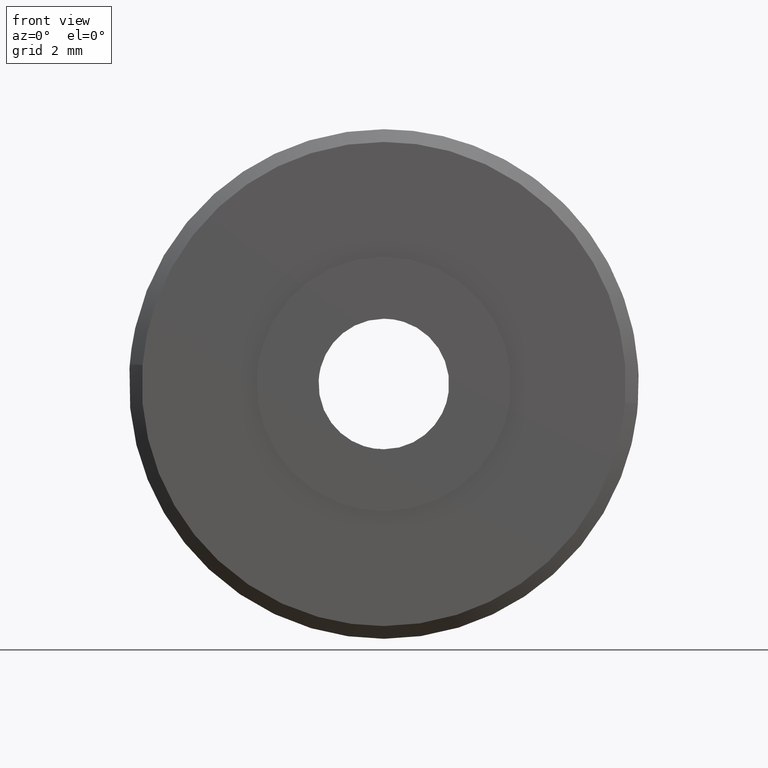
[diagram: clean part render]
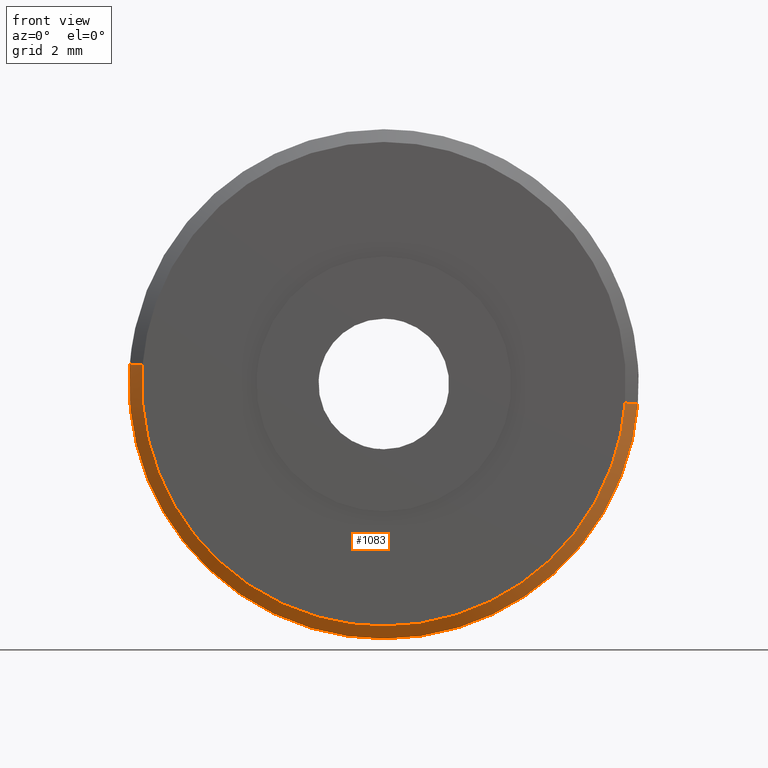
[diagram: same view with one face highlighted and labeled with its STEP entity id]
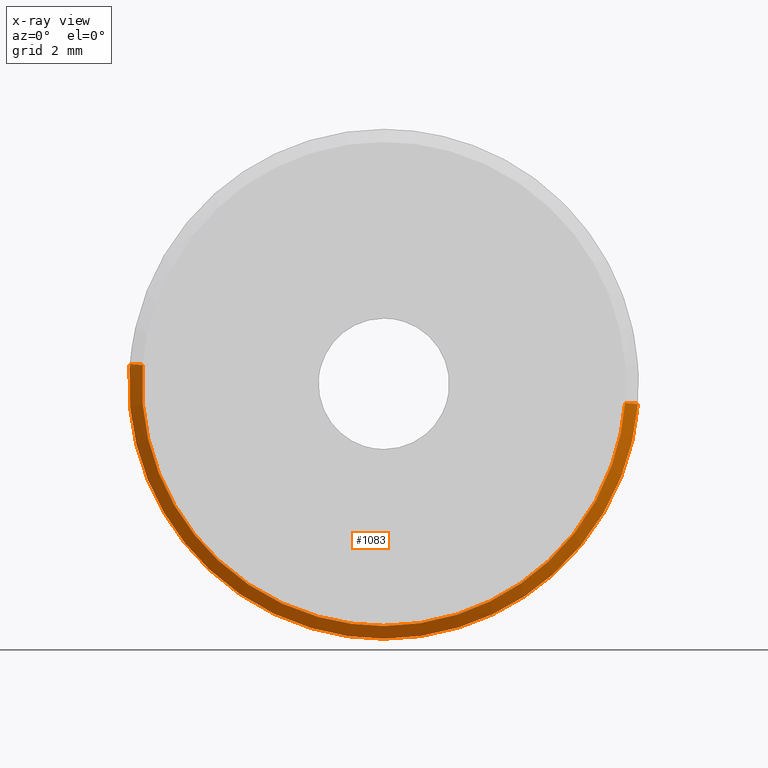
[diagram: x-ray of the same camera — body ghosted, the highlighted face saturated]
A machine part, front view. The second image highlights one B-rep face of the part: STEP entity #1083.
The next image is the same camera in x-ray: the body ghosted, the highlighted face saturated — about 0% of this face is hidden behind the body in this view.
In plain terms, the highlighted face is a freeform B-spline surface patch.
Its self-contained STEP definition (entity closure, byte-faithful):
#970=CARTESIAN_POINT('',(7.566602563034445,0.240000000000000,-0.595504536574348));
#971=CARTESIAN_POINT('',(6.971098026460096,0.240000000000000,-8.162107099608793));
#972=CARTESIAN_POINT('',(-0.595504536574348,0.240000000000000,-7.566602563034445));
#973=CARTESIAN_POINT('',(-8.162107099608793,0.240000000000000,-6.971098026460098));
#974=CARTESIAN_POINT('',(-7.566602563034445,0.240000000000000,0.595504536574348));
#975=CARTESIAN_POINT('',(7.985557072535785,0.660250000000000,-0.628476971553975));
#976=CARTESIAN_POINT('',(7.357080100981810,0.660250000000000,-8.614034044089760));
#977=CARTESIAN_POINT('',(-0.628476971553975,0.660250000000000,-7.985557072535785));
#978=CARTESIAN_POINT('',(-8.614034044089760,0.660250000000000,-7.357080100981811));
#979=CARTESIAN_POINT('',(-7.985557072535785,0.660250000000000,0.628476971553975));
#987=(BOUNDED_SURFACE()B_SPLINE_SURFACE(2,1,((#970,#975),(#971,#976),(#972,#977),(#973,#978),(#974,#979)),.UNSPECIFIED.,.F.,.F.,.U.)B_SPLINE_SURFACE_WITH_KNOTS((3,2,3),(2,2),(0.0,13.271816751996329,26.543633503992670),(0.0,1.0),.UNSPECIFIED.)GEOMETRIC_REPRESENTATION_ITEM()RATIONAL_B_SPLINE_SURFACE(((1.0,1.0),(0.707106781186548,0.707106781186548),(1.0,1.0),(0.707106781186548,0.707106781186548),(1.0,1.0)))REPRESENTATION_ITEM('')SURFACE());
#988=CARTESIAN_POINT('',(0.0,0.650000000000000,-8.0));
#989=VERTEX_POINT('',#988);
#990=CARTESIAN_POINT('',(7.975338669865577,0.650000000001389,-0.627672765833426));
#991=VERTEX_POINT('',#990);
#992=CARTESIAN_POINT('',(0.0,0.650000000000000,-8.0));
#993=CARTESIAN_POINT('',(7.395123933246020,0.650000000000000,-8.0));
#994=CARTESIAN_POINT('',(7.975338669865577,0.650000000001389,-0.627672765833426));
#1002=(BOUNDED_CURVE()B_SPLINE_CURVE(2,(#992,#993,#994),.UNSPECIFIED.,.F.,.U.)B_SPLINE_CURVE_WITH_KNOTS((3,3),(0.0,0.236331300632313),.UNSPECIFIED.)CURVE()GEOMETRIC_REPRESENTATION_ITEM()RATIONAL_B_SPLINE_CURVE((1.0,0.723120658605728,0.969723356170868))REPRESENTATION_ITEM(''));
#1003=EDGE_CURVE('',#989,#991,#1002,.T.);
#1004=ORIENTED_EDGE('',*,*,#1003,.T.);
#1005=CARTESIAN_POINT('',(7.576571736372270,0.250000000001252,-0.596289127541274));
#1006=VERTEX_POINT('',#1005);
#1007=CARTESIAN_POINT('',(7.576571736372270,0.250000000001252,-0.596289127541274));
#1008=CARTESIAN_POINT('',(7.975338669865577,0.650000000001389,-0.627672765833426));
#1009=QUASI_UNIFORM_CURVE('',1,(#1007,#1008),.UNSPECIFIED.,.F.,.U.);
#1010=EDGE_CURVE('',#1006,#991,#1009,.T.);
#1011=ORIENTED_EDGE('',*,*,#1010,.F.);
#1012=CARTESIAN_POINT('',(0.0,0.250000000000000,-7.600000000000000));
#1013=VERTEX_POINT('',#1012);
#1014=CARTESIAN_POINT('',(0.0,0.250000000000000,-7.600000000000000));
#1015=CARTESIAN_POINT('',(7.025367736584608,0.250000000000000,-7.599999999999999));
#1016=CARTESIAN_POINT('',(7.576571736372270,0.250000000001252,-0.596289127541274));
#1024=(BOUNDED_CURVE()B_SPLINE_CURVE(2,(#1014,#1015,#1016),.UNSPECIFIED.,.F.,.U.)B_SPLINE_CURVE_WITH_KNOTS((3,3),(0.0,0.236331300632335),.UNSPECIFIED.)CURVE()GEOMETRIC_REPRESENTATION_ITEM()RATIONAL_B_SPLINE_CURVE((1.0,0.723120658605703,0.969723356170914))REPRESENTATION_ITEM(''));
#1025=EDGE_CURVE('',#1013,#1006,#1024,.T.);
#1026=ORIENTED_EDGE('',*,*,#1025,.F.);
#1027=CARTESIAN_POINT('',(-7.576571736372269,0.250000000001252,0.596289127541271));
#1028=VERTEX_POINT('',#1027);
#1029=CARTESIAN_POINT('',(-7.576571736372269,0.250000000001252,0.596289127541271));
#1030=CARTESIAN_POINT('',(-7.600000000000000,0.250000000000000,0.298604813267883));
#1031=CARTESIAN_POINT('',(-7.600000000000000,0.250000000000000,-1.224606E-016));
#1032=CARTESIAN_POINT('',(-7.600000000000000,0.250000000000000,-7.600000000000000));
#1033=CARTESIAN_POINT('',(0.0,0.250000000000000,-7.600000000000000));
#1041=(BOUNDED_CURVE()B_SPLINE_CURVE(2,(#1029,#1030,#1031,#1032,#1033),.UNSPECIFIED.,.F.,.U.)B_SPLINE_CURVE_WITH_KNOTS((3,2,3),(0.736331300632335,0.750000000000000,1.0),.UNSPECIFIED.)CURVE()GEOMETRIC_REPRESENTATION_ITEM()RATIONAL_B_SPLINE_CURVE((0.969723356170914,0.983986122580845,1.0,0.707106781186547,1.0))REPRESENTATION_ITEM(''));
#1042=EDGE_CURVE('',#1028,#1013,#1041,.T.);
#1043=ORIENTED_EDGE('',*,*,#1042,.F.);
#1044=CARTESIAN_POINT('',(-7.975338669865353,0.650000000000833,0.627672765829178));
#1045=VERTEX_POINT('',#1044);
#1046=CARTESIAN_POINT('',(-7.576571736372269,0.250000000001252,0.596289127541271));
#1047=CARTESIAN_POINT('',(-7.975338669865353,0.650000000000833,0.627672765829178));
#1048=QUASI_UNIFORM_CURVE('',1,(#1046,#1047),.UNSPECIFIED.,.F.,.U.);
#1049=EDGE_CURVE('',#1028,#1045,#1048,.T.);
#1050=ORIENTED_EDGE('',*,*,#1049,.T.);
#1051=CARTESIAN_POINT('',(-7.985078721705695,0.650000000000000,0.488382849957833));
#1052=VERTEX_POINT('',#1051);
#1053=CARTESIAN_POINT('',(-7.975338669865353,0.650000000000833,0.627672765829178));
#1054=CARTESIAN_POINT('',(-7.980816501966211,0.650000000000000,0.558070309636122));
#1055=CARTESIAN_POINT('',(-7.985078721705695,0.650000000000000,0.488382849957833));
#1063=(BOUNDED_CURVE()B_SPLINE_CURVE(2,(#1053,#1054,#1055),.UNSPECIFIED.,.F.,.U.)B_SPLINE_CURVE_WITH_KNOTS((3,3),(0.736331300632494,0.739333080361814),.UNSPECIFIED.)CURVE()GEOMETRIC_REPRESENTATION_ITEM()RATIONAL_B_SPLINE_CURVE((0.969723356171246,0.972855598818611,0.976072294826647))REPRESENTATION_ITEM(''));
#1064=EDGE_CURVE('',#1045,#1052,#1063,.T.);
#1065=ORIENTED_EDGE('',*,*,#1064,.T.);
#1066=CARTESIAN_POINT('',(-7.985078721705695,0.650000000000000,0.488382849957833));
#1067=CARTESIAN_POINT('',(-8.000000000000002,0.650000000000000,0.244419365564827));
#1068=CARTESIAN_POINT('',(-8.0,0.650000000000000,-1.224606E-016));
#1069=CARTESIAN_POINT('',(-8.0,0.650000000000000,-8.0));
#1070=CARTESIAN_POINT('',(0.0,0.650000000000000,-8.0));
#1078=(BOUNDED_CURVE()B_SPLINE_CURVE(2,(#1066,#1067,#1068,#1069,#1070),.UNSPECIFIED.,.F.,.U.)B_SPLINE_CURVE_WITH_KNOTS((3,2,3),(0.739333080361814,0.750000000000000,1.0),.UNSPECIFIED.)CURVE()GEOMETRIC_REPRESENTATION_ITEM()RATIONAL_B_SPLINE_CURVE((0.976072294826647,0.987502926289389,1.0,0.707106781186548,1.0))REPRESENTATION_ITEM(''));
#1079=EDGE_CURVE('',#1052,#989,#1078,.T.);
#1080=ORIENTED_EDGE('',*,*,#1079,.T.);
#1081=EDGE_LOOP('',(#1004,#1011,#1026,#1043,#1050,#1065,#1080));
#1082=FACE_OUTER_BOUND('',#1081,.T.);
#1083=ADVANCED_FACE('',(#1082),#987,.T.);